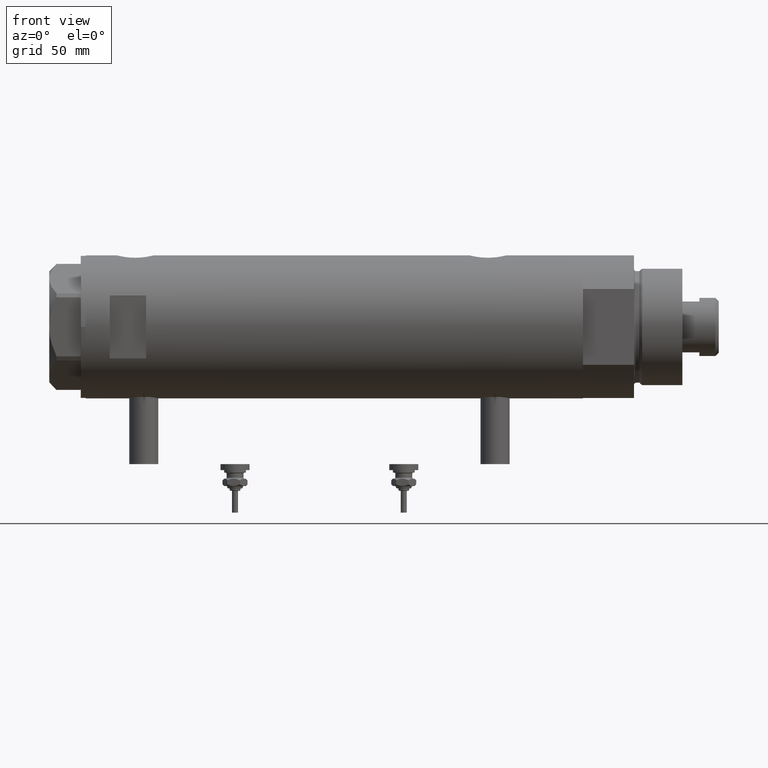
[diagram: clean part render]
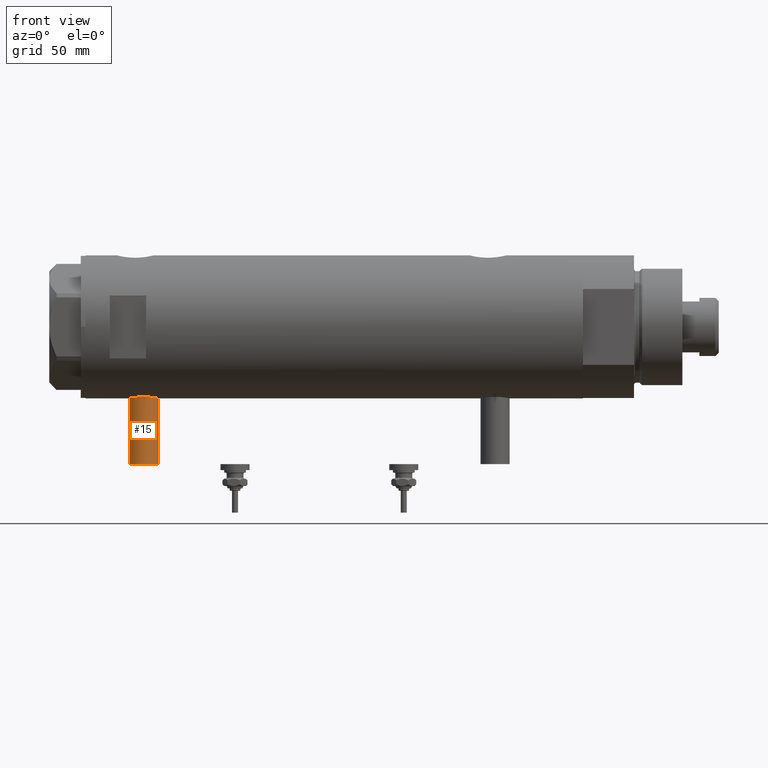
[diagram: same view with one face highlighted and labeled with its STEP entity id]
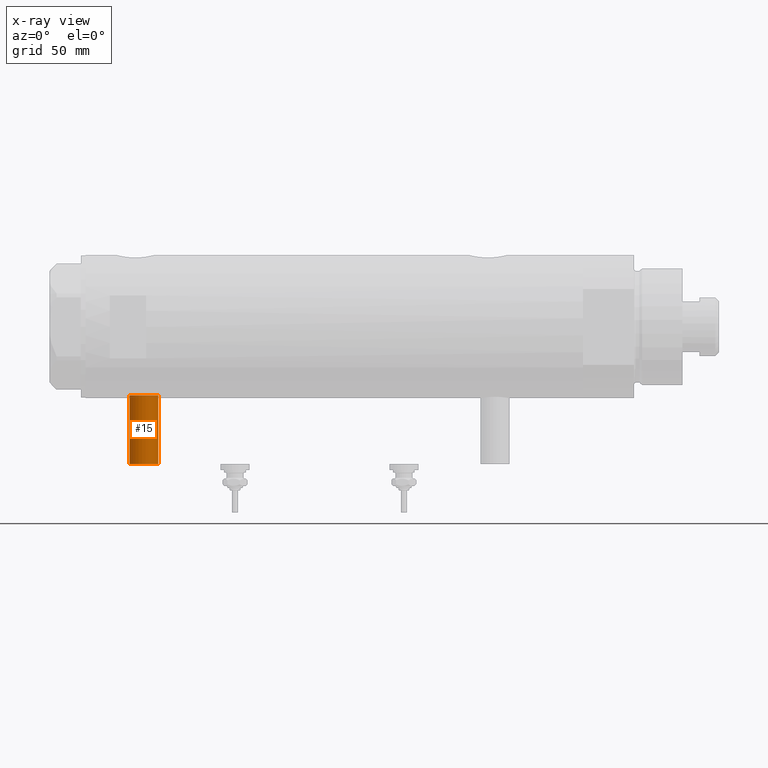
[diagram: x-ray of the same camera — body ghosted, the highlighted face saturated]
A machine part, front view. The second image highlights one B-rep face of the part: STEP entity #15.
The next image is the same camera in x-ray: the body ghosted, the highlighted face saturated — about 0% of this face is hidden behind the body in this view.
In plain terms, the highlighted cylindrical surface (edge-blend (fillet) strip) has radius 6 mm, axis along (0, 0, 1).
Its self-contained STEP definition (entity closure, byte-faithful):
#15 = ADVANCED_FACE ( 'NONE', ( #3097 ), #2647, .T. ) ;
#43 = CARTESIAN_POINT ( 'NONE',  ( -56.60000000000000142, 0.000000000000000000, 72.60000000000000853 ) ) ;
#213 = CARTESIAN_POINT ( 'NONE',  ( -28.30000000000000071, 0.000000000000000000, 72.60000000000000853 ) ) ;
#364 = LINE ( 'NONE', #2170, #4926 ) ;
#390 = CARTESIAN_POINT ( 'NONE',  ( -56.60000000000000142, 0.000000000000000000, 78.60000000000000853 ) ) ;
#453 = VECTOR ( 'NONE', #3807, 1000.000000000000000 ) ;
#554 = CARTESIAN_POINT ( 'NONE',  ( -28.30000000000000071, 0.000000000000000000, 78.60000000000000853 ) ) ;
#700 = VERTEX_POINT ( 'NONE', #2623 ) ;
#935 = DIRECTION ( 'NONE',  ( 0.000000000000000000, 0.000000000000000000, 1.000000000000000000 ) ) ;
#1011 = VERTEX_POINT ( 'NONE', #213 ) ;
#1075 = CARTESIAN_POINT ( 'NONE',  ( -56.60000000000000142, 7.347880794884104945E-16, 84.59999999999999432 ) ) ;
#1744 = VERTEX_POINT ( 'NONE', #5140 ) ;
#2170 = CARTESIAN_POINT ( 'NONE',  ( -56.60000000000000142, 0.000000000000000000, 72.60000000000000853 ) ) ;
#2276 = EDGE_CURVE ( 'NONE', #4803, #1011, #364, .T. ) ;
#2442 = ORIENTED_EDGE ( 'NONE', *, *, #2276, .T. ) ;
#2623 = CARTESIAN_POINT ( 'NONE',  ( -56.60000000000000142, 7.347880794884101001E-16, 84.59999999999999432 ) ) ;
#2647 = CYLINDRICAL_SURFACE ( 'NONE', #5875, 5.999999999999991118 ) ;
#2720 = EDGE_LOOP ( 'NONE', ( #3611, #2840, #2442, #4401 ) ) ;
#2840 = ORIENTED_EDGE ( 'NONE', *, *, #4077, .F. ) ;
#3097 = FACE_OUTER_BOUND ( 'NONE', #2720, .T. ) ;
#3130 = DIRECTION ( 'NONE',  ( 0.000000000000000000, 0.000000000000000000, -1.000000000000000000 ) ) ;
#3515 = DIRECTION ( 'NONE',  ( 1.000000000000000000, -0.000000000000000000, -0.000000000000000000 ) ) ;
#3552 = AXIS2_PLACEMENT_3D ( 'NONE', #554, #4209, #935 ) ;
#3569 = DIRECTION ( 'NONE',  ( 1.000000000000000000, -0.000000000000000000, -0.000000000000000000 ) ) ;
#3611 = ORIENTED_EDGE ( 'NONE', *, *, #3874, .F. ) ;
#3638 = CARTESIAN_POINT ( 'NONE',  ( -56.60000000000000142, 0.000000000000000000, 78.60000000000000853 ) ) ;
#3786 = LINE ( 'NONE', #1075, #453 ) ;
#3807 = DIRECTION ( 'NONE',  ( 1.000000000000000000, -0.000000000000000000, -0.000000000000000000 ) ) ;
#3874 = EDGE_CURVE ( 'NONE', #700, #1744, #3786, .T. ) ;
#4015 = DIRECTION ( 'NONE',  ( -1.000000000000000000, 0.000000000000000000, 0.000000000000000000 ) ) ;
#4077 = EDGE_CURVE ( 'NONE', #4803, #700, #5421, .T. ) ;
#4209 = DIRECTION ( 'NONE',  ( -1.000000000000000000, 0.000000000000000000, 0.000000000000000000 ) ) ;
#4401 = ORIENTED_EDGE ( 'NONE', *, *, #5332, .T. ) ;
#4803 = VERTEX_POINT ( 'NONE', #43 ) ;
#4926 = VECTOR ( 'NONE', #3515, 1000.000000000000000 ) ;
#5137 = AXIS2_PLACEMENT_3D ( 'NONE', #3638, #4015, #5914 ) ;
#5140 = CARTESIAN_POINT ( 'NONE',  ( -28.30000000000000071, 7.347880794884101001E-16, 84.59999999999999432 ) ) ;
#5332 = EDGE_CURVE ( 'NONE', #1011, #1744, #5582, .T. ) ;
#5421 = CIRCLE ( 'NONE', #5137, 5.999999999999991118 ) ;
#5582 = CIRCLE ( 'NONE', #3552, 5.999999999999991118 ) ;
#5875 = AXIS2_PLACEMENT_3D ( 'NONE', #390, #3569, #3130 ) ;
#5914 = DIRECTION ( 'NONE',  ( 0.000000000000000000, 0.000000000000000000, 1.000000000000000000 ) ) ;